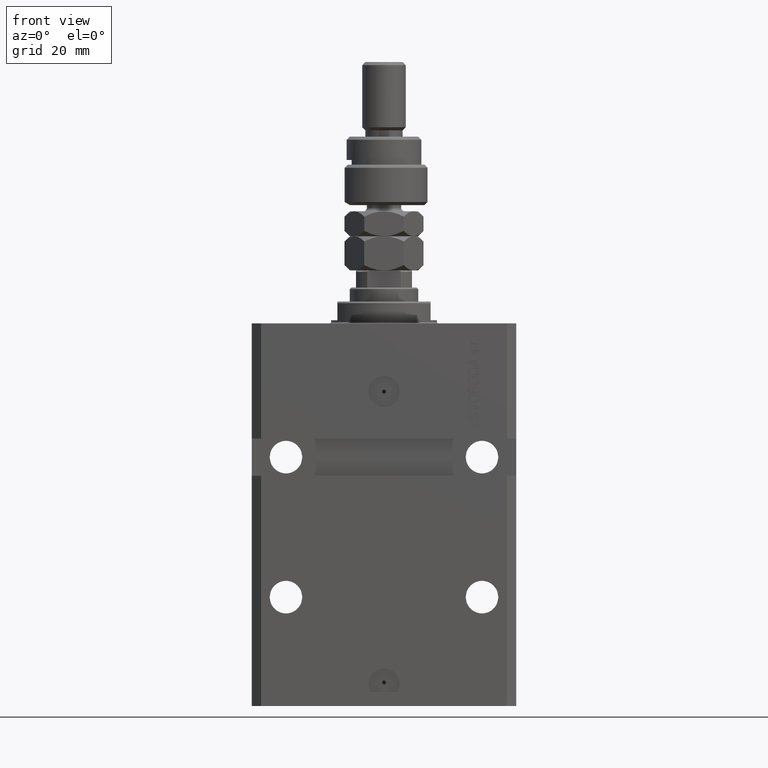
[diagram: clean part render]
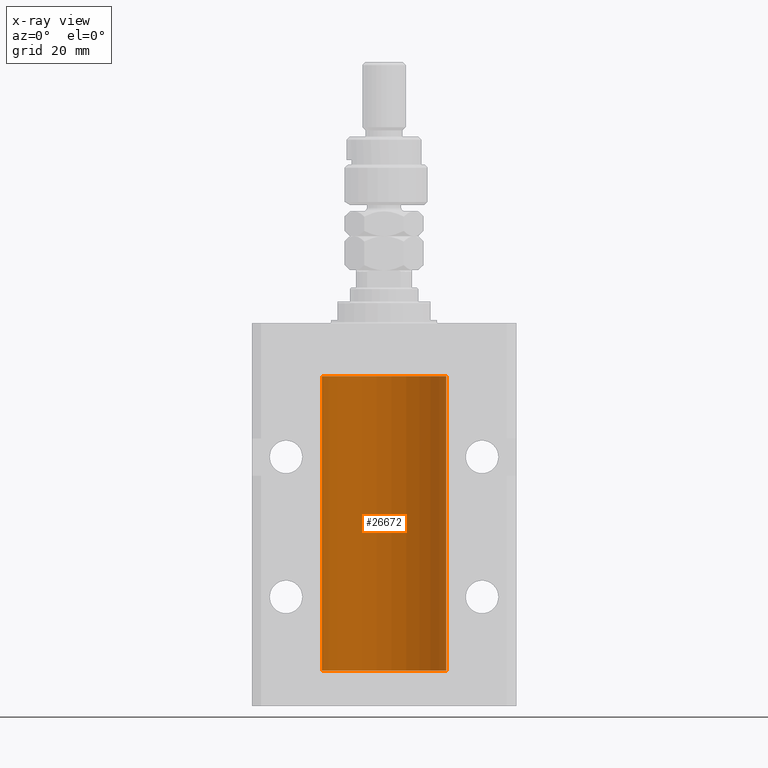
[diagram: x-ray — body ghosted, one internal face saturated and labeled with its STEP entity id]
A machine part, front view, then the same camera in x-ray: the body is ghosted and one INTERNAL B-rep face — a face not visible from any outside direction — is saturated and labeled: STEP entity #26672.
In plain terms, the highlighted cylindrical surface (partial cylindrical patch) has radius 20 mm, axis along (0, 0, 1).
Its self-contained STEP definition (entity closure, byte-faithful):
#243 = ORIENTED_EDGE ( 'NONE', *, *, #12727, .T. ) ;
#302 = CARTESIAN_POINT ( 'NONE',  ( -20.00000000000000000, 2.449293598294706513E-15, -17.00000000000000000 ) ) ;
#886 = FACE_OUTER_BOUND ( 'NONE', #27317, .T. ) ;
#1417 = EDGE_CURVE ( 'NONE', #36283, #29610, #38662, .T. ) ;
#2003 = VERTEX_POINT ( 'NONE', #48795 ) ;
#4260 = DIRECTION ( 'NONE',  ( -0.000000000000000000, -0.000000000000000000, 1.000000000000000000 ) ) ;
#4770 = CARTESIAN_POINT ( 'NONE',  ( 0.000000000000000000, 0.000000000000000000, -111.5999999999999943 ) ) ;
#5468 = CARTESIAN_POINT ( 'NONE',  ( -19.99638934703457593, 0.3843678041337688644, -23.50046362978100944 ) ) ;
#6026 = CARTESIAN_POINT ( 'NONE',  ( -20.00000000000010303, 3.580159278407742946E-13, -24.62500000000332889 ) ) ;
#6078 = AXIS2_PLACEMENT_3D ( 'NONE', #7165, #23345, #42156 ) ;
#6929 = CARTESIAN_POINT ( 'NONE',  ( -20.00000000000000000, -1.494965790691426527E-14, -108.3750000000000000 ) ) ;
#7165 = CARTESIAN_POINT ( 'NONE',  ( 0.000000000000000000, 0.000000000000000000, -111.5999999999999943 ) ) ;
#7349 = DIRECTION ( 'NONE',  ( 1.000000000000000000, 0.000000000000000000, 0.000000000000000000 ) ) ;
#8680 = CARTESIAN_POINT ( 'NONE',  ( -20.00000000000010303, 3.580159290815452135E-13, -109.6250000000033253 ) ) ;
#10289 = CARTESIAN_POINT ( 'NONE',  ( -19.99023018003212471, 0.6250578794725484277, -109.1628480970496895 ) ) ;
#11016 = CARTESIAN_POINT ( 'NONE',  ( -20.00000000000000000, -1.494965790691426527E-14, -108.3750000000000000 ) ) ;
#11653 = EDGE_CURVE ( 'NONE', #43120, #29610, #14133, .T. ) ;
#11799 = CARTESIAN_POINT ( 'NONE',  ( -19.99253506710754991, 0.5587120480776772702, -109.3251162083024894 ) ) ;
#12727 = EDGE_CURVE ( 'NONE', #43120, #29222, #25587, .T. ) ;
#13165 = CIRCLE ( 'NONE', #45200, 20.00000000000000000 ) ;
#13822 = LINE ( 'NONE', #45206, #14708 ) ;
#13885 = CARTESIAN_POINT ( 'NONE',  ( -20.00000000000000000, 2.449293598294706513E-15, -111.5999999999999943 ) ) ;
#14133 = LINE ( 'NONE', #13885, #47317 ) ;
#14138 = CARTESIAN_POINT ( 'NONE',  ( -19.99023380173165876, 0.6249420416828411762, -108.8367079305639322 ) ) ;
#14418 = CARTESIAN_POINT ( 'NONE',  ( 20.00000000000000000, 0.000000000000000000, -111.5999999999999943 ) ) ;
#14708 = VECTOR ( 'NONE', #17920, 1000.000000000000000 ) ;
#14906 = CARTESIAN_POINT ( 'NONE',  ( -19.99766197842594906, 0.3150331617867563327, -108.4540207010250299 ) ) ;
#15025 = ORIENTED_EDGE ( 'NONE', *, *, #28236, .F. ) ;
#15224 = ORIENTED_EDGE ( 'NONE', *, *, #24212, .F. ) ;
#15584 = CARTESIAN_POINT ( 'NONE',  ( 0.000000000000000000, 0.000000000000000000, -17.00000000000000000 ) ) ;
#15956 = CIRCLE ( 'NONE', #6078, 20.00000000000000000 ) ;
#16420 = CARTESIAN_POINT ( 'NONE',  ( 20.00000000000000000, 0.000000000000000000, -17.00000000000000000 ) ) ;
#16529 = CARTESIAN_POINT ( 'NONE',  ( -19.99256581701871482, 0.5573276956902001311, -23.67348565770948809 ) ) ;
#17031 = VECTOR ( 'NONE', #47211, 1000.000000000000000 ) ;
#17295 = CARTESIAN_POINT ( 'NONE',  ( -19.99253506710754991, 0.5587120480776751608, -24.32511620830248589 ) ) ;
#17920 = DIRECTION ( 'NONE',  ( -0.000000000000000000, -0.000000000000000000, 1.000000000000000000 ) ) ;
#17921 = VERTEX_POINT ( 'NONE', #302 ) ;
#17992 = CARTESIAN_POINT ( 'NONE',  ( -19.99947377218718358, 0.1636439183262759223, -108.3912636400465459 ) ) ;
#18408 = EDGE_CURVE ( 'NONE', #2003, #29222, #13822, .T. ) ;
#18759 = CARTESIAN_POINT ( 'NONE',  ( -20.00000000000000000, -2.867584836844214272E-15, -23.37500000000000000 ) ) ;
#19501 = EDGE_CURVE ( 'NONE', #30982, #17921, #13165, .T. ) ;
#19857 = VECTOR ( 'NONE', #32522, 1000.000000000000000 ) ;
#20264 = CARTESIAN_POINT ( 'NONE',  ( -19.99769349528941476, 0.3253804398728720182, -109.5585582072768318 ) ) ;
#20634 = CARTESIAN_POINT ( 'NONE',  ( -19.99023380173166231, 0.6249420416828462832, -23.83670793056396064 ) ) ;
#21854 = DIRECTION ( 'NONE',  ( -0.000000000000000000, -0.000000000000000000, 1.000000000000000000 ) ) ;
#23345 = DIRECTION ( 'NONE',  ( 0.000000000000000000, 0.000000000000000000, 1.000000000000000000 ) ) ;
#24212 = EDGE_CURVE ( 'NONE', #36283, #17921, #32260, .T. ) ;
#25587 = B_SPLINE_CURVE_WITH_KNOTS ( 'NONE', 3,
 ( #6929, #30102, #17992, #14906, #37551, #33692, #14138, #10289, #11799, #20264, #31860, #43435 ),
 .UNSPECIFIED., .F., .F.,
 ( 4, 2, 2, 2, 2, 4 ),
 ( 1.555867690894744095E-18, 0.0002442693137305176681, 0.0004885386274610337099, 0.0009770772549220949586, 0.001465615882383156099, 0.001954154509844217673 ),
 .UNSPECIFIED. ) ;
#26672 = ADVANCED_FACE ( 'NONE', ( #886 ), #27691, .F. ) ;
#27317 = EDGE_LOOP ( 'NONE', ( #44529, #15025, #27566, #44846, #15224, #39245, #41277, #243 ) ) ;
#27566 = ORIENTED_EDGE ( 'NONE', *, *, #42520, .T. ) ;
#27691 = CYLINDRICAL_SURFACE ( 'NONE', #30699, 20.00000000000000000 ) ;
#28236 = EDGE_CURVE ( 'NONE', #48546, #2003, #15956, .T. ) ;
#29222 = VERTEX_POINT ( 'NONE', #8680 ) ;
#29610 = VERTEX_POINT ( 'NONE', #6026 ) ;
#30102 = CARTESIAN_POINT ( 'NONE',  ( -19.99999999999999289, 0.08259581631025748882, -108.3749999999999716 ) ) ;
#30699 = AXIS2_PLACEMENT_3D ( 'NONE', #4770, #4260, #35391 ) ;
#30982 = VERTEX_POINT ( 'NONE', #16420 ) ;
#31276 = DIRECTION ( 'NONE',  ( 0.000000000000000000, 0.000000000000000000, 1.000000000000000000 ) ) ;
#31860 = CARTESIAN_POINT ( 'NONE',  ( -20.00000000000000355, 0.1631688615953337806, -109.6249999999998721 ) ) ;
#32229 = CARTESIAN_POINT ( 'NONE',  ( -20.00000000000000000, 0.1631688615953320320, -24.62499999999985434 ) ) ;
#32260 = LINE ( 'NONE', #47986, #19857 ) ;
#32522 = DIRECTION ( 'NONE',  ( -0.000000000000000000, -0.000000000000000000, 1.000000000000000000 ) ) ;
#32757 = CARTESIAN_POINT ( 'NONE',  ( -19.99023018003212471, 0.6250578794725500931, -24.16284809704970371 ) ) ;
#33267 = CARTESIAN_POINT ( 'NONE',  ( -19.99766197842594906, 0.3150331617867667688, -23.45402070102505476 ) ) ;
#33692 = CARTESIAN_POINT ( 'NONE',  ( -19.99256581701871838, 0.5573276956901952461, -108.6734856577094916 ) ) ;
#35391 = DIRECTION ( 'NONE',  ( 1.000000000000000000, 0.000000000000000000, 0.000000000000000000 ) ) ;
#35863 = LINE ( 'NONE', #39979, #17031 ) ;
#36283 = VERTEX_POINT ( 'NONE', #18759 ) ;
#37551 = CARTESIAN_POINT ( 'NONE',  ( -19.99638934703457593, 0.3843678041337614260, -108.5004636297810094 ) ) ;
#38662 = B_SPLINE_CURVE_WITH_KNOTS ( 'NONE', 3,
 ( #40454, #44578, #40714, #33267, #5468, #16529, #20634, #32757, #17295, #48984, #32229, #47955 ),
 .UNSPECIFIED., .F., .F.,
 ( 4, 2, 2, 2, 2, 4 ),
 ( 5.848927291235706941E-19, 0.0002442693137305304075, 0.0004885386274610601645, 0.0009770772549221123059, 0.001465615882383164339, 0.001954154509844215938 ),
 .UNSPECIFIED. ) ;
#39245 = ORIENTED_EDGE ( 'NONE', *, *, #1417, .T. ) ;
#39979 = CARTESIAN_POINT ( 'NONE',  ( 20.00000000000000000, 0.000000000000000000, -111.5999999999999943 ) ) ;
#40454 = CARTESIAN_POINT ( 'NONE',  ( -20.00000000000000000, -2.867584836844214272E-15, -23.37500000000000000 ) ) ;
#40714 = CARTESIAN_POINT ( 'NONE',  ( -19.99947377218718714, 0.1636439183262877461, -23.39126364004656011 ) ) ;
#41277 = ORIENTED_EDGE ( 'NONE', *, *, #11653, .F. ) ;
#42156 = DIRECTION ( 'NONE',  ( 1.000000000000000000, 0.000000000000000000, 0.000000000000000000 ) ) ;
#42520 = EDGE_CURVE ( 'NONE', #48546, #30982, #35863, .T. ) ;
#43120 = VERTEX_POINT ( 'NONE', #11016 ) ;
#43435 = CARTESIAN_POINT ( 'NONE',  ( -20.00000000000010303, 3.580159290815452135E-13, -109.6250000000033253 ) ) ;
#44529 = ORIENTED_EDGE ( 'NONE', *, *, #18408, .F. ) ;
#44578 = CARTESIAN_POINT ( 'NONE',  ( -19.99999999999999645, 0.08259581631026780002, -23.37500000000000000 ) ) ;
#44846 = ORIENTED_EDGE ( 'NONE', *, *, #19501, .T. ) ;
#45200 = AXIS2_PLACEMENT_3D ( 'NONE', #15584, #31276, #7349 ) ;
#45206 = CARTESIAN_POINT ( 'NONE',  ( -20.00000000000000000, 2.449293598294706513E-15, -111.5999999999999943 ) ) ;
#47211 = DIRECTION ( 'NONE',  ( -0.000000000000000000, -0.000000000000000000, 1.000000000000000000 ) ) ;
#47317 = VECTOR ( 'NONE', #21854, 1000.000000000000000 ) ;
#47955 = CARTESIAN_POINT ( 'NONE',  ( -20.00000000000010303, 3.580159278407742946E-13, -24.62500000000332889 ) ) ;
#47986 = CARTESIAN_POINT ( 'NONE',  ( -20.00000000000000000, 2.449293598294706513E-15, -111.5999999999999943 ) ) ;
#48546 = VERTEX_POINT ( 'NONE', #14418 ) ;
#48795 = CARTESIAN_POINT ( 'NONE',  ( -20.00000000000000000, 2.449293598294706513E-15, -111.5999999999999943 ) ) ;
#48984 = CARTESIAN_POINT ( 'NONE',  ( -19.99769349528941120, 0.3253804398728645242, -24.55855820727680339 ) ) ;